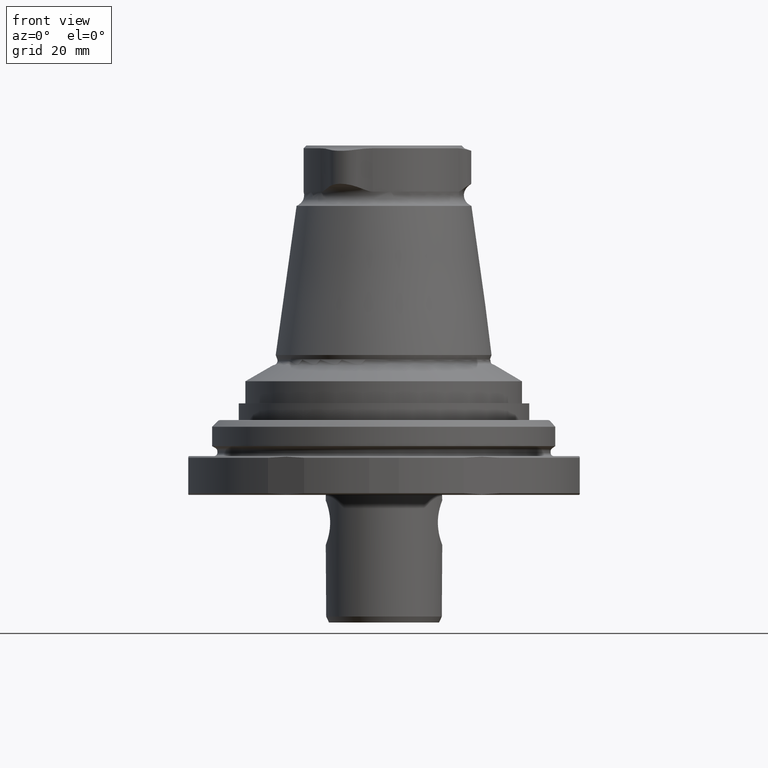
[diagram: clean part render]
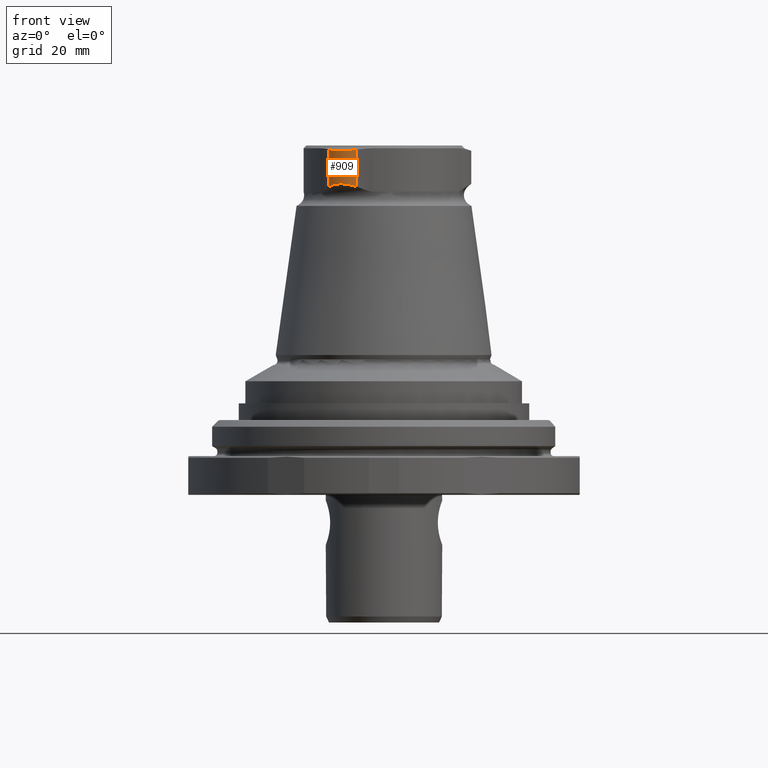
[diagram: same view with one face highlighted and labeled with its STEP entity id]
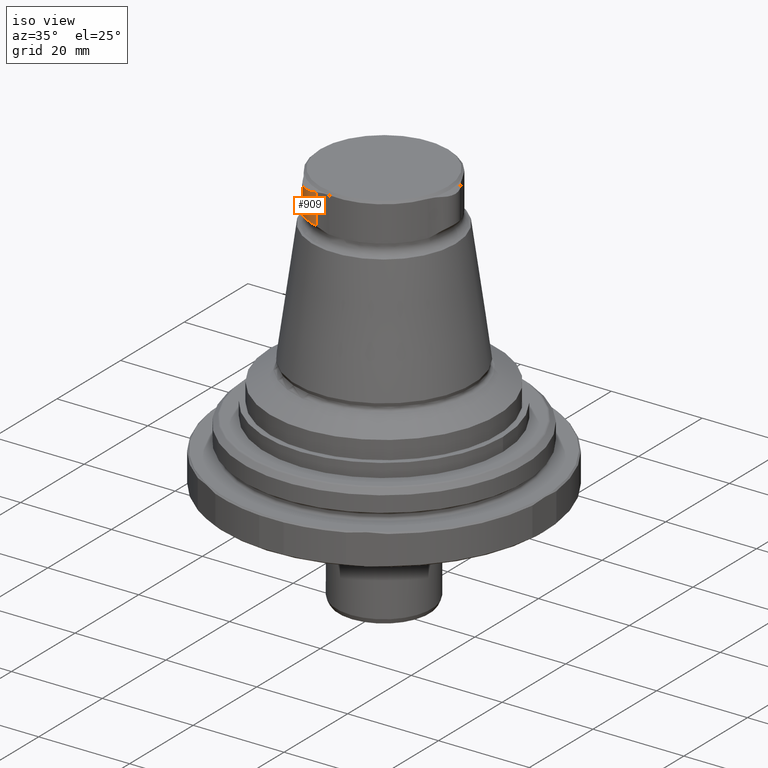
[diagram: same view with one face highlighted and labeled with its STEP entity id]
A machine part, front view. The second image highlights one B-rep face of the part: STEP entity #909.
A second angle (iso view) of the same face is appended — the face is thin or edge-on in the first view.
In plain terms, the highlighted cylindrical surface (edge-blend (fillet) strip) has radius 5 mm, axis along (0, 0, 1).
Its self-contained STEP definition (entity closure, byte-faithful):
#27=LINE('',#1495,#55);
#28=LINE('',#1513,#56);
#55=VECTOR('',#1149,1000.);
#56=VECTOR('',#1156,1000.);
#84=B_SPLINE_CURVE_WITH_KNOTS('',3,(#1436,#1437,#1438,#1439,#1440),
 .UNSPECIFIED.,.F.,.F.,(4,1,4),(2.20052746756963E-7,0.0030446083562862,
0.00608899665982565),.UNSPECIFIED.);
#93=B_SPLINE_CURVE_WITH_KNOTS('',3,(#1506,#1507,#1508,#1509,#1510,#1511),
 .UNSPECIFIED.,.F.,.F.,(4,1,1,4),(6.11526737278053E-7,0.0030914355938368,
0.00463684762738656,0.00618225966093632),.UNSPECIFIED.);
#94=B_SPLINE_CURVE_WITH_KNOTS('',3,(#1515,#1516,#1517,#1518),
 .UNSPECIFIED.,.F.,.F.,(4,4),(0.00622155540779305,0.00622754949232766),
 .UNSPECIFIED.);
#95=B_SPLINE_CURVE_WITH_KNOTS('',3,(#1519,#1520,#1521,#1522),
 .UNSPECIFIED.,.F.,.F.,(4,4),(2.1221164720392E-7,6.21085284075724E-6),
 .UNSPECIFIED.);
#126=CYLINDRICAL_SURFACE('',#1002,5.);
#207=ORIENTED_EDGE('',*,*,#447,.T.);
#208=ORIENTED_EDGE('',*,*,#427,.F.);
#209=ORIENTED_EDGE('',*,*,#443,.F.);
#210=ORIENTED_EDGE('',*,*,#448,.F.);
#211=ORIENTED_EDGE('',*,*,#446,.F.);
#212=ORIENTED_EDGE('',*,*,#449,.F.);
#427=EDGE_CURVE('',#552,#553,#84,.T.);
#443=EDGE_CURVE('',#564,#552,#27,.T.);
#446=EDGE_CURVE('',#565,#566,#93,.T.);
#447=EDGE_CURVE('',#567,#553,#28,.T.);
#448=EDGE_CURVE('',#566,#564,#94,.T.);
#449=EDGE_CURVE('',#567,#565,#95,.T.);
#552=VERTEX_POINT('',#1435);
#553=VERTEX_POINT('',#1441);
#564=VERTEX_POINT('',#1496);
#565=VERTEX_POINT('',#1504);
#566=VERTEX_POINT('',#1505);
#567=VERTEX_POINT('',#1514);
#707=EDGE_LOOP('',(#207,#208,#209,#210,#211,#212));
#803=FACE_BOUND('',#707,.T.);
#909=ADVANCED_FACE('',(#803),#126,.T.);
#1002=AXIS2_PLACEMENT_3D('',#1512,#1154,#1155);
#1149=DIRECTION('',(5.47430718319515E-16,8.51929311524195E-24,1.));
#1154=DIRECTION('',(5.47430718319515E-16,8.51929311524195E-24,1.));
#1155=DIRECTION('',(1.,-9.77164313006873E-16,-5.47430716006892E-16));
#1156=DIRECTION('',(5.47430718319515E-16,8.51929311524195E-24,1.));
#1435=CARTESIAN_POINT('',(-9.89976921547156,-11.4179951797517,54.2772080629533));
#1436=CARTESIAN_POINT('',(-9.89976921547157,-11.4179951797517,54.2772080629533));
#1437=CARTESIAN_POINT('',(-9.46874979874256,-12.3403036356407,54.1263436353158));
#1438=CARTESIAN_POINT('',(-8.03681504945373,-13.9027956392514,53.971017110377));
#1439=CARTESIAN_POINT('',(-5.9527219752744,-14.3703366550135,54.1263316709391));
#1440=CARTESIAN_POINT('',(-4.93838927821661,-14.2824492220778,54.2772080629533));
#1441=CARTESIAN_POINT('',(-4.93838927821661,-14.2824492220778,54.2772080629533));
#1495=CARTESIAN_POINT('',(-9.89976921547162,-11.4179951797517,-42.9132268899356));
#1496=CARTESIAN_POINT('',(-9.89976921547157,-11.4179951797517,47.5836531554482));
#1504=CARTESIAN_POINT('',(-4.9440444993606,-14.2829359880094,47.5855935752607));
#1505=CARTESIAN_POINT('',(-9.89736315656183,-11.4231361278926,47.5855935752607));
#1506=CARTESIAN_POINT('',(-4.94404449936061,-14.2829359880094,47.5855935752607));
#1507=CARTESIAN_POINT('',(-5.92840430982601,-14.3671006528592,47.9225140437942));
#1508=CARTESIAN_POINT('',(-7.49952779326128,-14.0370388645684,48.2047450265336));
#1509=CARTESIAN_POINT('',(-9.13471859664568,-12.709582930956,48.016127474396));
#1510=CARTESIAN_POINT('',(-9.68773009494296,-11.8703908792824,47.7540437474488));
#1511=CARTESIAN_POINT('',(-9.89736315656183,-11.4231361278926,47.5855935752607));
#1512=CARTESIAN_POINT('',(-5.36999999999927,-9.30111283664447,-42.9132268899356));
#1513=CARTESIAN_POINT('',(-4.93838927821666,-14.2824492220778,-42.9132268899356));
#1514=CARTESIAN_POINT('',(-4.93838927821661,-14.2824492220778,47.5836531554483));
#1515=CARTESIAN_POINT('',(-9.89736315656183,-11.4231361278926,47.5855935752607));
#1516=CARTESIAN_POINT('',(-9.89816627519147,-11.4214226642802,47.5849482311036));
#1517=CARTESIAN_POINT('',(-9.8989684047252,-11.4197087789407,47.5843013379119));
#1518=CARTESIAN_POINT('',(-9.89976921547157,-11.4179951797517,47.5836531554482));
#1519=CARTESIAN_POINT('',(-4.93838927821662,-14.2824492220778,47.5836531554483));
#1520=CARTESIAN_POINT('',(-4.94027378220326,-14.2826125059966,47.5843013648048));
#1521=CARTESIAN_POINT('',(-4.94215885657609,-14.2827747619097,47.5849481693393));
#1522=CARTESIAN_POINT('',(-4.94404449936061,-14.2829359880094,47.5855935752607));